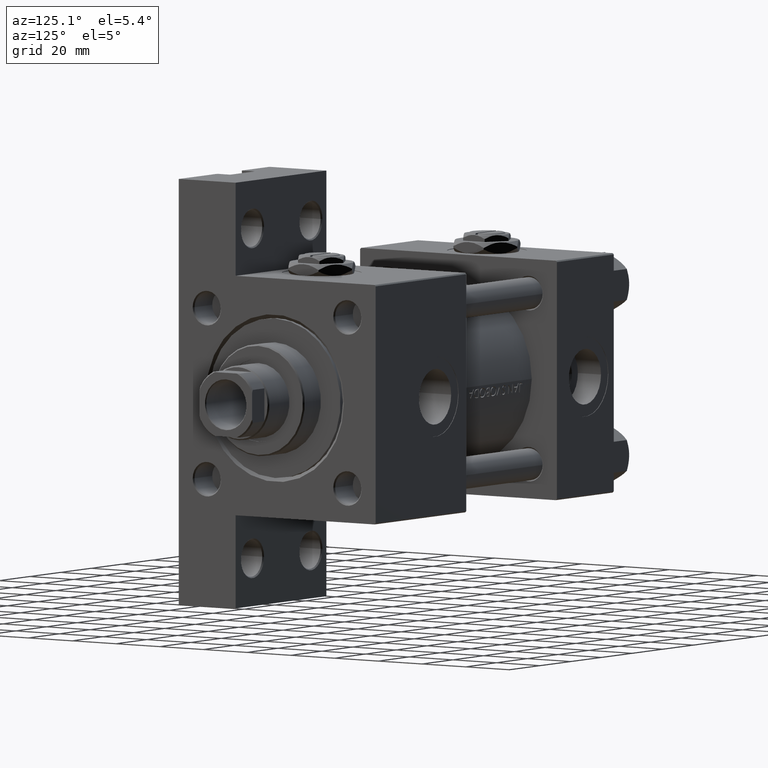
[diagram: clean part render]
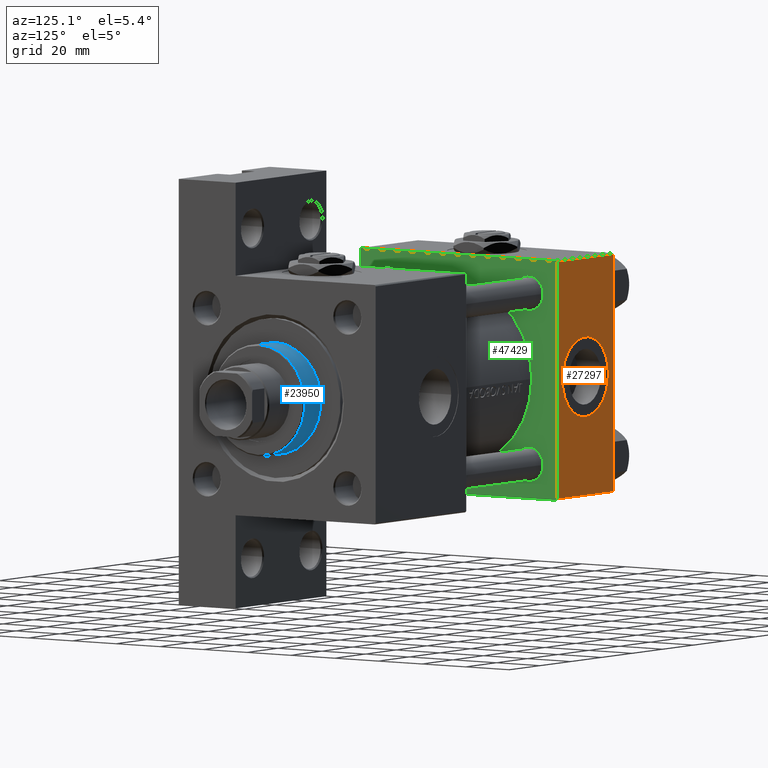
[diagram: same view with three faces highlighted in distinct colors, each labeled with its STEP entity id]
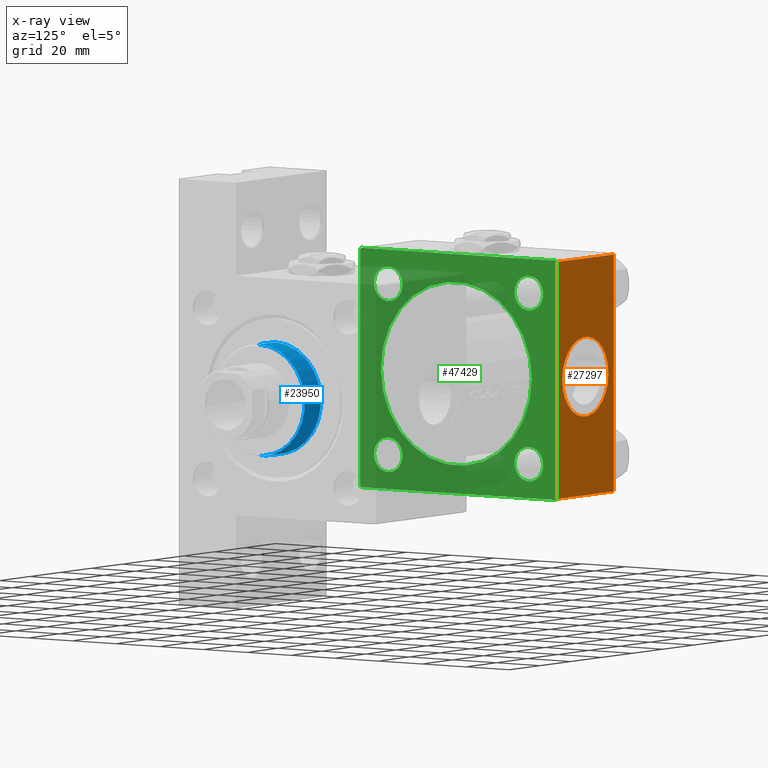
[diagram: x-ray of the same camera — body ghosted, the three highlighted faces saturated]
A machine part, auxiliary view with three faces highlighted in distinct colors.
The next image is the same camera in x-ray (body ghosted, the three faces saturated) — at least one of them is partly hidden behind the body in this view.
Their STEP definitions:

[orange] entity #27297 — the highlighted planar face has unit normal (0, -1, -0).
#698 = AXIS2_PLACEMENT_3D ( 'NONE', #48544, #6549, #17602 ) ;
#837 = ORIENTED_EDGE ( 'NONE', *, *, #43812, .T. ) ;
#2219 = CARTESIAN_POINT ( 'NONE',  ( 37.00000000000000000, 44.99999999999998579, 45.00000000000001421 ) ) ;
#3216 = CARTESIAN_POINT ( 'NONE',  ( 0.000000000000000000, -44.49999999999995737, 45.00000000000000000 ) ) ;
#3867 = VERTEX_POINT ( 'NONE', #13564 ) ;
#5289 = ORIENTED_EDGE ( 'NONE', *, *, #8720, .T. ) ;
#5829 = VECTOR ( 'NONE', #19779, 1000.000000000000000 ) ;
#6549 = DIRECTION ( 'NONE',  ( 0.000000000000000000, 0.000000000000000000, 1.000000000000000000 ) ) ;
#6741 = FACE_BOUND ( 'NONE', #31843, .T. ) ;
#8708 = LINE ( 'NONE', #39368, #5829 ) ;
#8720 = EDGE_CURVE ( 'NONE', #41757, #17794, #8708, .T. ) ;
#10639 = VECTOR ( 'NONE', #48528, 1000.000000000000000 ) ;
#11150 = VERTEX_POINT ( 'NONE', #25711 ) ;
#12069 = VERTEX_POINT ( 'NONE', #44156 ) ;
#13564 = CARTESIAN_POINT ( 'NONE',  ( 37.00000000000000000, 44.49999999999998579, 45.00000000000001421 ) ) ;
#16955 = CIRCLE ( 'NONE', #46637, 15.00000000000000355 ) ;
#17142 = CARTESIAN_POINT ( 'NONE',  ( 37.00000000000000000, 44.99999999999998579, 45.00000000000001421 ) ) ;
#17602 = DIRECTION ( 'NONE',  ( 1.000000000000000000, 0.000000000000000000, 0.000000000000000000 ) ) ;
#17794 = VERTEX_POINT ( 'NONE', #3216 ) ;
#18328 = LINE ( 'NONE', #45459, #10639 ) ;
#18463 = ORIENTED_EDGE ( 'NONE', *, *, #19425, .F. ) ;
#19425 = EDGE_CURVE ( 'NONE', #3867, #12069, #44029, .T. ) ;
#19779 = DIRECTION ( 'NONE',  ( 0.000000000000000000, -1.000000000000000000, -1.541976423090495387E-16 ) ) ;
#22065 = PLANE ( 'NONE',  #46260 ) ;
#22133 = LINE ( 'NONE', #30139, #26343 ) ;
#22363 = CIRCLE ( 'NONE', #698, 15.00000000000000355 ) ;
#24687 = VERTEX_POINT ( 'NONE', #26126 ) ;
#25711 = CARTESIAN_POINT ( 'NONE',  ( 33.50000000000000000, -8.673617379884038628E-15, 45.00000000000000711 ) ) ;
#26126 = CARTESIAN_POINT ( 'NONE',  ( 3.499999999999997780, -6.836647181163008250E-15, 45.00000000000000711 ) ) ;
#26343 = VECTOR ( 'NONE', #45495, 1000.000000000000000 ) ;
#27297 = ADVANCED_FACE ( 'NONE', ( #6741, #44442 ), #22065, .F. ) ;
#29650 = DIRECTION ( 'NONE',  ( 0.000000000000000000, 0.000000000000000000, 1.000000000000000000 ) ) ;
#29827 = DIRECTION ( 'NONE',  ( 0.000000000000000000, 1.541976423090495633E-16, -1.000000000000000000 ) ) ;
#30139 = CARTESIAN_POINT ( 'NONE',  ( 37.00000000000000000, -44.49999999999998579, 45.00000000000000000 ) ) ;
#31143 = EDGE_CURVE ( 'NONE', #17794, #12069, #22133, .T. ) ;
#31843 = EDGE_LOOP ( 'NONE', ( #33026, #45064 ) ) ;
#33026 = ORIENTED_EDGE ( 'NONE', *, *, #35669, .F. ) ;
#33195 = CARTESIAN_POINT ( 'NONE',  ( 0.000000000000000000, 44.49999999999998579, 45.00000000000001421 ) ) ;
#35669 = EDGE_CURVE ( 'NONE', #11150, #24687, #22363, .T. ) ;
#35729 = DIRECTION ( 'NONE',  ( 0.000000000000000000, -1.000000000000000000, -1.541976423090495387E-16 ) ) ;
#36669 = ORIENTED_EDGE ( 'NONE', *, *, #31143, .T. ) ;
#36881 = DIRECTION ( 'NONE',  ( 0.000000000000000000, 1.000000000000000000, 1.541976423090495633E-16 ) ) ;
#39368 = CARTESIAN_POINT ( 'NONE',  ( 0.000000000000000000, 44.99999999999998579, 45.00000000000001421 ) ) ;
#39910 = EDGE_LOOP ( 'NONE', ( #5289, #36669, #18463, #837 ) ) ;
#40128 = EDGE_CURVE ( 'NONE', #24687, #11150, #16955, .T. ) ;
#41225 = CARTESIAN_POINT ( 'NONE',  ( 18.50000000000000000, -8.673617379884038628E-15, 45.00000000000000711 ) ) ;
#41757 = VERTEX_POINT ( 'NONE', #33195 ) ;
#43812 = EDGE_CURVE ( 'NONE', #3867, #41757, #18328, .T. ) ;
#44029 = LINE ( 'NONE', #17142, #44914 ) ;
#44156 = CARTESIAN_POINT ( 'NONE',  ( 37.00000000000000000, -44.49999999999995737, 45.00000000000000000 ) ) ;
#44442 = FACE_OUTER_BOUND ( 'NONE', #39910, .T. ) ;
#44914 = VECTOR ( 'NONE', #35729, 1000.000000000000000 ) ;
#45064 = ORIENTED_EDGE ( 'NONE', *, *, #40128, .F. ) ;
#45459 = CARTESIAN_POINT ( 'NONE',  ( 0.000000000000000000, 44.49999999999998579, 45.00000000000001421 ) ) ;
#45495 = DIRECTION ( 'NONE',  ( 1.000000000000000000, 0.000000000000000000, 0.000000000000000000 ) ) ;
#46260 = AXIS2_PLACEMENT_3D ( 'NONE', #2219, #29827, #36881 ) ;
#46637 = AXIS2_PLACEMENT_3D ( 'NONE', #41225, #29650, #48039 ) ;
#48039 = DIRECTION ( 'NONE',  ( 1.000000000000000000, 0.000000000000000000, 0.000000000000000000 ) ) ;
#48528 = DIRECTION ( 'NONE',  ( -1.000000000000000000, 0.000000000000000000, 0.000000000000000000 ) ) ;
#48544 = CARTESIAN_POINT ( 'NONE',  ( 18.50000000000000000, -8.673617379884038628E-15, 45.00000000000000711 ) ) ;

[blue] entity #23950 — the highlighted cylindrical surface (partial cylindrical patch) has radius 21 mm, axis along (-1, 0, 0).
#353 = DIRECTION ( 'NONE',  ( -0.000000000000000000, -0.000000000000000000, -1.000000000000000000 ) ) ;
#420 = CIRCLE ( 'NONE', #2035, 21.00000000000000000 ) ;
#2010 = ORIENTED_EDGE ( 'NONE', *, *, #49235, .T. ) ;
#2035 = AXIS2_PLACEMENT_3D ( 'NONE', #3549, #38199, #34181 ) ;
#2776 = EDGE_LOOP ( 'NONE', ( #34924, #35629, #2010, #12148 ) ) ;
#2835 = AXIS2_PLACEMENT_3D ( 'NONE', #49617, #6719, #11645 ) ;
#3549 = CARTESIAN_POINT ( 'NONE',  ( 0.000000000000000000, 0.000000000000000000, 39.19999999999999574 ) ) ;
#4124 = CARTESIAN_POINT ( 'NONE',  ( -21.00000000000000000, 0.000000000000000000, 39.69999999999999574 ) ) ;
#4602 = CIRCLE ( 'NONE', #39889, 21.00000000000000000 ) ;
#4959 = DIRECTION ( 'NONE',  ( 1.000000000000000000, 0.000000000000000000, 0.000000000000000000 ) ) ;
#6719 = DIRECTION ( 'NONE',  ( -0.000000000000000000, -0.000000000000000000, -1.000000000000000000 ) ) ;
#7464 = VECTOR ( 'NONE', #353, 1000.000000000000000 ) ;
#10336 = DIRECTION ( 'NONE',  ( 0.000000000000000000, 0.000000000000000000, 1.000000000000000000 ) ) ;
#10615 = VERTEX_POINT ( 'NONE', #42496 ) ;
#11525 = VERTEX_POINT ( 'NONE', #43752 ) ;
#11645 = DIRECTION ( 'NONE',  ( -1.000000000000000000, 0.000000000000000000, 0.000000000000000000 ) ) ;
#12148 = ORIENTED_EDGE ( 'NONE', *, *, #32394, .T. ) ;
#15274 = LINE ( 'NONE', #30575, #38684 ) ;
#15529 = DIRECTION ( 'NONE',  ( -0.000000000000000000, -0.000000000000000000, -1.000000000000000000 ) ) ;
#23950 = ADVANCED_FACE ( 'NONE', ( #34249 ), #38512, .T. ) ;
#24311 = EDGE_CURVE ( 'NONE', #38079, #11525, #420, .T. ) ;
#27750 = VERTEX_POINT ( 'NONE', #30754 ) ;
#30575 = CARTESIAN_POINT ( 'NONE',  ( 21.00000000000000000, 2.571758278209441661E-15, 39.69999999999999574 ) ) ;
#30754 = CARTESIAN_POINT ( 'NONE',  ( -21.00000000000000000, 0.000000000000000000, 28.69999999999999929 ) ) ;
#32394 = EDGE_CURVE ( 'NONE', #27750, #10615, #4602, .T. ) ;
#34181 = DIRECTION ( 'NONE',  ( 1.000000000000000000, 0.000000000000000000, 0.000000000000000000 ) ) ;
#34249 = FACE_OUTER_BOUND ( 'NONE', #2776, .T. ) ;
#34924 = ORIENTED_EDGE ( 'NONE', *, *, #46850, .F. ) ;
#35629 = ORIENTED_EDGE ( 'NONE', *, *, #24311, .T. ) ;
#38079 = VERTEX_POINT ( 'NONE', #49305 ) ;
#38199 = DIRECTION ( 'NONE',  ( 0.000000000000000000, 0.000000000000000000, -1.000000000000000000 ) ) ;
#38512 = CYLINDRICAL_SURFACE ( 'NONE', #2835, 21.00000000000000000 ) ;
#38531 = LINE ( 'NONE', #4124, #7464 ) ;
#38684 = VECTOR ( 'NONE', #15529, 1000.000000000000000 ) ;
#39889 = AXIS2_PLACEMENT_3D ( 'NONE', #44785, #10336, #4959 ) ;
#42496 = CARTESIAN_POINT ( 'NONE',  ( 21.00000000000000000, 2.571758278209441661E-15, 28.69999999999999929 ) ) ;
#43752 = CARTESIAN_POINT ( 'NONE',  ( -21.00000000000000000, 0.000000000000000000, 39.19999999999999574 ) ) ;
#44785 = CARTESIAN_POINT ( 'NONE',  ( 0.000000000000000000, 0.000000000000000000, 28.69999999999999929 ) ) ;
#46850 = EDGE_CURVE ( 'NONE', #38079, #10615, #15274, .T. ) ;
#49235 = EDGE_CURVE ( 'NONE', #11525, #27750, #38531, .T. ) ;
#49305 = CARTESIAN_POINT ( 'NONE',  ( 21.00000000000000000, 2.571758278209441661E-15, 39.19999999999999574 ) ) ;
#49617 = CARTESIAN_POINT ( 'NONE',  ( 0.000000000000000000, 0.000000000000000000, 39.69999999999999574 ) ) ;

[green] entity #47429 — the highlighted planar face has unit normal (-1, 0, -0).
#19 = AXIS2_PLACEMENT_3D ( 'NONE', #16494, #47169, #39593 ) ;
#274 = EDGE_LOOP ( 'NONE', ( #38449, #39137 ) ) ;
#323 = LINE ( 'NONE', #15659, #34106 ) ;
#586 = EDGE_CURVE ( 'NONE', #15545, #28436, #14469, .T. ) ;
#1056 = EDGE_CURVE ( 'NONE', #12216, #4345, #3162, .T. ) ;
#1671 = AXIS2_PLACEMENT_3D ( 'NONE', #41282, #6108, #18402 ) ;
#1748 = CARTESIAN_POINT ( 'NONE',  ( 37.00000000000000000, 44.99999999999998579, 44.50000000000001421 ) ) ;
#1787 = VERTEX_POINT ( 'NONE', #1748 ) ;
#2305 = PLANE ( 'NONE',  #45966 ) ;
#2359 = EDGE_CURVE ( 'NONE', #12069, #8738, #323, .T. ) ;
#2802 = FACE_BOUND ( 'NONE', #3215, .T. ) ;
#3162 = LINE ( 'NONE', #41116, #9651 ) ;
#3164 = EDGE_LOOP ( 'NONE', ( #7950, #37338 ) ) ;
#3215 = EDGE_LOOP ( 'NONE', ( #41050, #27830 ) ) ;
#3516 = DIRECTION ( 'NONE',  ( 0.000000000000000000, 0.000000000000000000, 1.000000000000000000 ) ) ;
#3611 = ORIENTED_EDGE ( 'NONE', *, *, #23202, .T. ) ;
#3867 = VERTEX_POINT ( 'NONE', #13564 ) ;
#4345 = VERTEX_POINT ( 'NONE', #26788 ) ;
#5090 = DIRECTION ( 'NONE',  ( -1.000000000000000000, 0.000000000000000000, -0.000000000000000000 ) ) ;
#5840 = CARTESIAN_POINT ( 'NONE',  ( 37.00000000000000000, 44.99999999999998579, -44.49999999999995737 ) ) ;
#6108 = DIRECTION ( 'NONE',  ( -1.000000000000000000, 0.000000000000000000, -0.000000000000000000 ) ) ;
#6204 = LINE ( 'NONE', #47944, #9113 ) ;
#6441 = DIRECTION ( 'NONE',  ( 0.000000000000000000, 0.7071067811865474617, -0.7071067811865474617 ) ) ;
#6633 = AXIS2_PLACEMENT_3D ( 'NONE', #32445, #34164, #14850 ) ;
#6816 = FACE_BOUND ( 'NONE', #48446, .T. ) ;
#7158 = VECTOR ( 'NONE', #30208, 1000.000000000000000 ) ;
#7407 = EDGE_CURVE ( 'NONE', #28196, #45106, #40709, .T. ) ;
#7759 = VERTEX_POINT ( 'NONE', #13417 ) ;
#7844 = CARTESIAN_POINT ( 'NONE',  ( 37.00000000000000000, 44.99999999999998579, -44.49999999999998579 ) ) ;
#7857 = CARTESIAN_POINT ( 'NONE',  ( 37.00000000000000000, 32.14999999999999147, -32.15000000000000568 ) ) ;
#7950 = ORIENTED_EDGE ( 'NONE', *, *, #7407, .T. ) ;
#7959 = CARTESIAN_POINT ( 'NONE',  ( 37.00000000000000000, 32.14999999999999147, 38.65000000000004121 ) ) ;
#8091 = LINE ( 'NONE', #7844, #20570 ) ;
#8286 = DIRECTION ( 'NONE',  ( 0.000000000000000000, -0.7071067811865474617, 0.7071067811865474617 ) ) ;
#8338 = EDGE_CURVE ( 'NONE', #45597, #12212, #27475, .T. ) ;
#8666 = DIRECTION ( 'NONE',  ( -1.000000000000000000, 0.000000000000000000, -0.000000000000000000 ) ) ;
#8738 = VERTEX_POINT ( 'NONE', #31204 ) ;
#9113 = VECTOR ( 'NONE', #28802, 1000.000000000000000 ) ;
#9651 = VECTOR ( 'NONE', #6441, 1000.000000000000114 ) ;
#10069 = FACE_BOUND ( 'NONE', #274, .T. ) ;
#10078 = CARTESIAN_POINT ( 'NONE',  ( 37.00000000000000000, 4.225031457058367344E-15, -35.50000000000000711 ) ) ;
#10274 = EDGE_CURVE ( 'NONE', #1787, #33252, #12896, .T. ) ;
#10807 = VERTEX_POINT ( 'NONE', #22351 ) ;
#11369 = EDGE_CURVE ( 'NONE', #43736, #7759, #29986, .T. ) ;
#11488 = VECTOR ( 'NONE', #27705, 1000.000000000000000 ) ;
#12052 = CARTESIAN_POINT ( 'NONE',  ( 37.00000000000000000, 0.000000000000000000, -1.000000000000007772 ) ) ;
#12069 = VERTEX_POINT ( 'NONE', #44156 ) ;
#12074 = EDGE_CURVE ( 'NONE', #8738, #12216, #6204, .T. ) ;
#12212 = VERTEX_POINT ( 'NONE', #27014 ) ;
#12216 = VERTEX_POINT ( 'NONE', #23251 ) ;
#12876 = CARTESIAN_POINT ( 'NONE',  ( 37.00000000000000000, -32.14999999999997726, -32.15000000000001279 ) ) ;
#12896 = LINE ( 'NONE', #39522, #11488 ) ;
#13417 = CARTESIAN_POINT ( 'NONE',  ( 37.00000000000000000, -32.14999999999997726, -38.65000000000004832 ) ) ;
#13519 = ORIENTED_EDGE ( 'NONE', *, *, #47486, .F. ) ;
#13564 = CARTESIAN_POINT ( 'NONE',  ( 37.00000000000000000, 44.49999999999998579, 45.00000000000001421 ) ) ;
#13868 = CIRCLE ( 'NONE', #37141, 34.49999999999999289 ) ;
#14140 = VERTEX_POINT ( 'NONE', #20340 ) ;
#14197 = EDGE_LOOP ( 'NONE', ( #3611, #27172 ) ) ;
#14385 = VECTOR ( 'NONE', #8286, 1000.000000000000114 ) ;
#14469 = CIRCLE ( 'NONE', #35310, 6.500000000000033751 ) ;
#14779 = EDGE_CURVE ( 'NONE', #19490, #14140, #39434, .T. ) ;
#14850 = DIRECTION ( 'NONE',  ( 0.000000000000000000, 0.000000000000000000, 1.000000000000000000 ) ) ;
#15545 = VERTEX_POINT ( 'NONE', #7959 ) ;
#15659 = CARTESIAN_POINT ( 'NONE',  ( 37.00000000000000000, -45.00000000000000711, 44.49999999999997158 ) ) ;
#16334 = ORIENTED_EDGE ( 'NONE', *, *, #19425, .T. ) ;
#16380 = ORIENTED_EDGE ( 'NONE', *, *, #26146, .T. ) ;
#16494 = CARTESIAN_POINT ( 'NONE',  ( 37.00000000000000000, 0.000000000000000000, -1.000000000000007772 ) ) ;
#17071 = EDGE_CURVE ( 'NONE', #12212, #45597, #30527, .T. ) ;
#17142 = CARTESIAN_POINT ( 'NONE',  ( 37.00000000000000000, 44.99999999999998579, 45.00000000000001421 ) ) ;
#17591 = EDGE_LOOP ( 'NONE', ( #33244, #16380, #46599, #26762, #16334, #41085, #38518, #24707 ) ) ;
#18402 = DIRECTION ( 'NONE',  ( 0.000000000000000000, 0.000000000000000000, 1.000000000000000000 ) ) ;
#19425 = EDGE_CURVE ( 'NONE', #3867, #12069, #44029, .T. ) ;
#19490 = VERTEX_POINT ( 'NONE', #10078 ) ;
#19647 = EDGE_CURVE ( 'NONE', #1787, #3867, #22869, .T. ) ;
#20340 = CARTESIAN_POINT ( 'NONE',  ( 37.00000000000000000, 0.000000000000000000, 33.49999999999998579 ) ) ;
#20405 = DIRECTION ( 'NONE',  ( 0.000000000000000000, 0.000000000000000000, 1.000000000000000000 ) ) ;
#20452 = AXIS2_PLACEMENT_3D ( 'NONE', #12876, #47074, #31214 ) ;
#20570 = VECTOR ( 'NONE', #27424, 1000.000000000000114 ) ;
#20882 = DIRECTION ( 'NONE',  ( 0.000000000000000000, 0.000000000000000000, 1.000000000000000000 ) ) ;
#21652 = DIRECTION ( 'NONE',  ( -1.000000000000000000, 0.000000000000000000, -0.000000000000000000 ) ) ;
#22351 = CARTESIAN_POINT ( 'NONE',  ( 37.00000000000000000, 44.49999999999998579, -44.99999999999998579 ) ) ;
#22869 = LINE ( 'NONE', #34422, #14385 ) ;
#23019 = ORIENTED_EDGE ( 'NONE', *, *, #14779, .F. ) ;
#23202 = EDGE_CURVE ( 'NONE', #7759, #43736, #49393, .T. ) ;
#23251 = CARTESIAN_POINT ( 'NONE',  ( 37.00000000000000000, -45.00000000000000000, -44.49999999999995737 ) ) ;
#24707 = ORIENTED_EDGE ( 'NONE', *, *, #1056, .T. ) ;
#24844 = CARTESIAN_POINT ( 'NONE',  ( 37.00000000000000000, 32.14999999999999147, -38.65000000000004121 ) ) ;
#25167 = FACE_OUTER_BOUND ( 'NONE', #17591, .T. ) ;
#25916 = FACE_BOUND ( 'NONE', #3164, .T. ) ;
#26146 = EDGE_CURVE ( 'NONE', #10807, #33252, #8091, .T. ) ;
#26451 = LINE ( 'NONE', #38247, #7158 ) ;
#26762 = ORIENTED_EDGE ( 'NONE', *, *, #19647, .T. ) ;
#26788 = CARTESIAN_POINT ( 'NONE',  ( 37.00000000000000000, -44.49999999999995737, -45.00000000000000000 ) ) ;
#27014 = CARTESIAN_POINT ( 'NONE',  ( 37.00000000000000000, -32.14999999999997726, 25.64999999999997726 ) ) ;
#27172 = ORIENTED_EDGE ( 'NONE', *, *, #11369, .T. ) ;
#27424 = DIRECTION ( 'NONE',  ( -0.000000000000000000, 0.7071067811865474617, 0.7071067811865474617 ) ) ;
#27475 = CIRCLE ( 'NONE', #6633, 6.500000000000033751 ) ;
#27705 = DIRECTION ( 'NONE',  ( 0.000000000000000000, 0.000000000000000000, -1.000000000000000000 ) ) ;
#27830 = ORIENTED_EDGE ( 'NONE', *, *, #8338, .T. ) ;
#28005 = CARTESIAN_POINT ( 'NONE',  ( 37.00000000000000000, 32.14999999999999147, 32.15000000000000568 ) ) ;
#28196 = VERTEX_POINT ( 'NONE', #24844 ) ;
#28234 = CARTESIAN_POINT ( 'NONE',  ( 37.00000000000000000, 0.000000000000000000, 0.000000000000000000 ) ) ;
#28436 = VERTEX_POINT ( 'NONE', #35833 ) ;
#28502 = DIRECTION ( 'NONE',  ( 0.000000000000000000, 0.000000000000000000, 1.000000000000000000 ) ) ;
#28672 = AXIS2_PLACEMENT_3D ( 'NONE', #40228, #36462, #20882 ) ;
#28802 = DIRECTION ( 'NONE',  ( 0.000000000000000000, 7.709882115452476934E-17, -1.000000000000000000 ) ) ;
#29422 = DIRECTION ( 'NONE',  ( -0.000000000000000000, 0.000000000000000000, 1.000000000000000000 ) ) ;
#29986 = CIRCLE ( 'NONE', #33192, 6.500000000000033751 ) ;
#30144 = DIRECTION ( 'NONE',  ( 0.000000000000000000, 0.000000000000000000, 1.000000000000000000 ) ) ;
#30208 = DIRECTION ( 'NONE',  ( 0.000000000000000000, -1.000000000000000000, -1.541976423090495633E-16 ) ) ;
#30527 = CIRCLE ( 'NONE', #1671, 6.500000000000033751 ) ;
#30953 = DIRECTION ( 'NONE',  ( -0.000000000000000000, -0.7071067811865425767, -0.7071067811865524577 ) ) ;
#31204 = CARTESIAN_POINT ( 'NONE',  ( 37.00000000000000000, -45.00000000000000711, 44.49999999999997158 ) ) ;
#31214 = DIRECTION ( 'NONE',  ( 0.000000000000000000, 0.000000000000000000, 1.000000000000000000 ) ) ;
#31379 = CIRCLE ( 'NONE', #37042, 6.500000000000033751 ) ;
#31707 = CARTESIAN_POINT ( 'NONE',  ( 37.00000000000000000, -32.14999999999997726, -25.64999999999997726 ) ) ;
#32099 = AXIS2_PLACEMENT_3D ( 'NONE', #7857, #5090, #20405 ) ;
#32445 = CARTESIAN_POINT ( 'NONE',  ( 37.00000000000000000, -32.14999999999997726, 32.15000000000001279 ) ) ;
#33192 = AXIS2_PLACEMENT_3D ( 'NONE', #43001, #46285, #46794 ) ;
#33244 = ORIENTED_EDGE ( 'NONE', *, *, #36846, .F. ) ;
#33252 = VERTEX_POINT ( 'NONE', #5840 ) ;
#34106 = VECTOR ( 'NONE', #30953, 1000.000000000000114 ) ;
#34164 = DIRECTION ( 'NONE',  ( -1.000000000000000000, 0.000000000000000000, -0.000000000000000000 ) ) ;
#34422 = CARTESIAN_POINT ( 'NONE',  ( 37.00000000000000000, 44.49999999999998579, 45.00000000000001421 ) ) ;
#35310 = AXIS2_PLACEMENT_3D ( 'NONE', #28005, #8666, #28502 ) ;
#35729 = DIRECTION ( 'NONE',  ( 0.000000000000000000, -1.000000000000000000, -1.541976423090495387E-16 ) ) ;
#35833 = CARTESIAN_POINT ( 'NONE',  ( 37.00000000000000000, 32.14999999999999147, 25.64999999999997016 ) ) ;
#36462 = DIRECTION ( 'NONE',  ( -1.000000000000000000, 0.000000000000000000, -0.000000000000000000 ) ) ;
#36699 = CARTESIAN_POINT ( 'NONE',  ( 37.00000000000000000, -32.14999999999997726, 38.65000000000004832 ) ) ;
#36846 = EDGE_CURVE ( 'NONE', #10807, #4345, #26451, .T. ) ;
#37042 = AXIS2_PLACEMENT_3D ( 'NONE', #37928, #41966, #3516 ) ;
#37141 = AXIS2_PLACEMENT_3D ( 'NONE', #12052, #45749, #30144 ) ;
#37338 = ORIENTED_EDGE ( 'NONE', *, *, #37801, .T. ) ;
#37694 = CIRCLE ( 'NONE', #32099, 6.500000000000033751 ) ;
#37801 = EDGE_CURVE ( 'NONE', #45106, #28196, #37694, .T. ) ;
#37928 = CARTESIAN_POINT ( 'NONE',  ( 37.00000000000000000, 32.14999999999999147, 32.15000000000000568 ) ) ;
#38247 = CARTESIAN_POINT ( 'NONE',  ( 37.00000000000000000, 44.99999999999998579, -44.99999999999998579 ) ) ;
#38291 = CARTESIAN_POINT ( 'NONE',  ( 37.00000000000000000, 32.14999999999999147, -25.64999999999997016 ) ) ;
#38449 = ORIENTED_EDGE ( 'NONE', *, *, #41175, .T. ) ;
#38518 = ORIENTED_EDGE ( 'NONE', *, *, #12074, .T. ) ;
#39137 = ORIENTED_EDGE ( 'NONE', *, *, #586, .T. ) ;
#39434 = CIRCLE ( 'NONE', #19, 34.49999999999999289 ) ;
#39522 = CARTESIAN_POINT ( 'NONE',  ( 37.00000000000000000, 44.99999999999998579, 45.00000000000001421 ) ) ;
#39593 = DIRECTION ( 'NONE',  ( 0.000000000000000000, 0.000000000000000000, 1.000000000000000000 ) ) ;
#40228 = CARTESIAN_POINT ( 'NONE',  ( 37.00000000000000000, 32.14999999999999147, -32.15000000000000568 ) ) ;
#40709 = CIRCLE ( 'NONE', #28672, 6.500000000000033751 ) ;
#41050 = ORIENTED_EDGE ( 'NONE', *, *, #17071, .T. ) ;
#41085 = ORIENTED_EDGE ( 'NONE', *, *, #2359, .T. ) ;
#41116 = CARTESIAN_POINT ( 'NONE',  ( 37.00000000000000000, -44.49999999999998579, -45.00000000000000000 ) ) ;
#41175 = EDGE_CURVE ( 'NONE', #28436, #15545, #31379, .T. ) ;
#41282 = CARTESIAN_POINT ( 'NONE',  ( 37.00000000000000000, -32.14999999999997726, 32.15000000000001279 ) ) ;
#41966 = DIRECTION ( 'NONE',  ( -1.000000000000000000, 0.000000000000000000, -0.000000000000000000 ) ) ;
#43001 = CARTESIAN_POINT ( 'NONE',  ( 37.00000000000000000, -32.14999999999997726, -32.15000000000001279 ) ) ;
#43736 = VERTEX_POINT ( 'NONE', #31707 ) ;
#44029 = LINE ( 'NONE', #17142, #44914 ) ;
#44156 = CARTESIAN_POINT ( 'NONE',  ( 37.00000000000000000, -44.49999999999995737, 45.00000000000000000 ) ) ;
#44914 = VECTOR ( 'NONE', #35729, 1000.000000000000000 ) ;
#45029 = FACE_BOUND ( 'NONE', #14197, .T. ) ;
#45106 = VERTEX_POINT ( 'NONE', #38291 ) ;
#45597 = VERTEX_POINT ( 'NONE', #36699 ) ;
#45749 = DIRECTION ( 'NONE',  ( 1.000000000000000000, -0.000000000000000000, 0.000000000000000000 ) ) ;
#45966 = AXIS2_PLACEMENT_3D ( 'NONE', #28234, #21652, #29422 ) ;
#46285 = DIRECTION ( 'NONE',  ( -1.000000000000000000, 0.000000000000000000, -0.000000000000000000 ) ) ;
#46599 = ORIENTED_EDGE ( 'NONE', *, *, #10274, .F. ) ;
#46794 = DIRECTION ( 'NONE',  ( 0.000000000000000000, 0.000000000000000000, 1.000000000000000000 ) ) ;
#47074 = DIRECTION ( 'NONE',  ( -1.000000000000000000, 0.000000000000000000, -0.000000000000000000 ) ) ;
#47169 = DIRECTION ( 'NONE',  ( 1.000000000000000000, -0.000000000000000000, 0.000000000000000000 ) ) ;
#47429 = ADVANCED_FACE ( 'NONE', ( #45029, #25916, #2802, #10069, #6816, #25167 ), #2305, .F. ) ;
#47486 = EDGE_CURVE ( 'NONE', #14140, #19490, #13868, .T. ) ;
#47944 = CARTESIAN_POINT ( 'NONE',  ( 37.00000000000000000, -45.00000000000000711, 45.00000000000000000 ) ) ;
#48446 = EDGE_LOOP ( 'NONE', ( #13519, #23019 ) ) ;
#49393 = CIRCLE ( 'NONE', #20452, 6.500000000000033751 ) ;